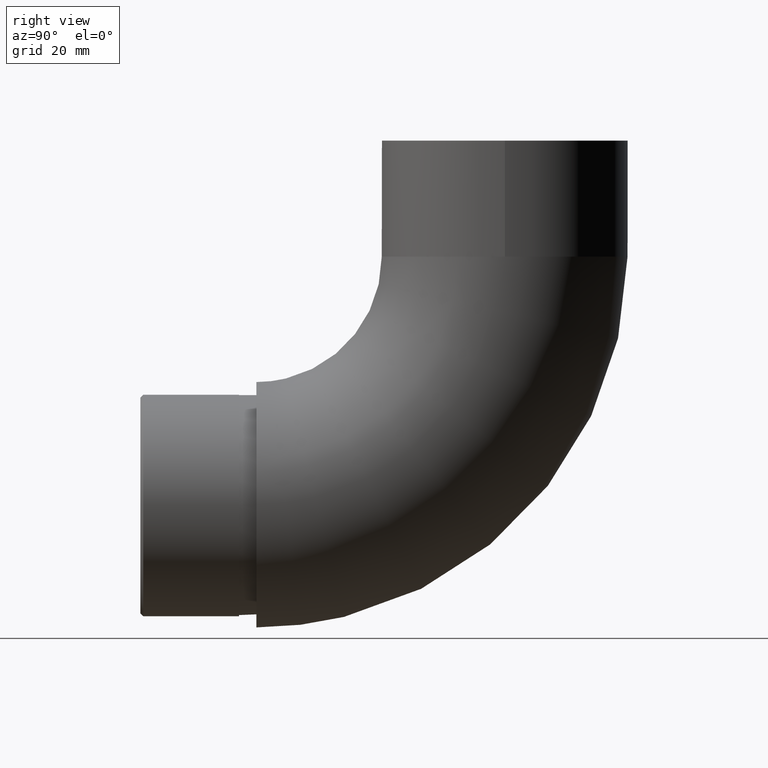
[diagram: clean part render]
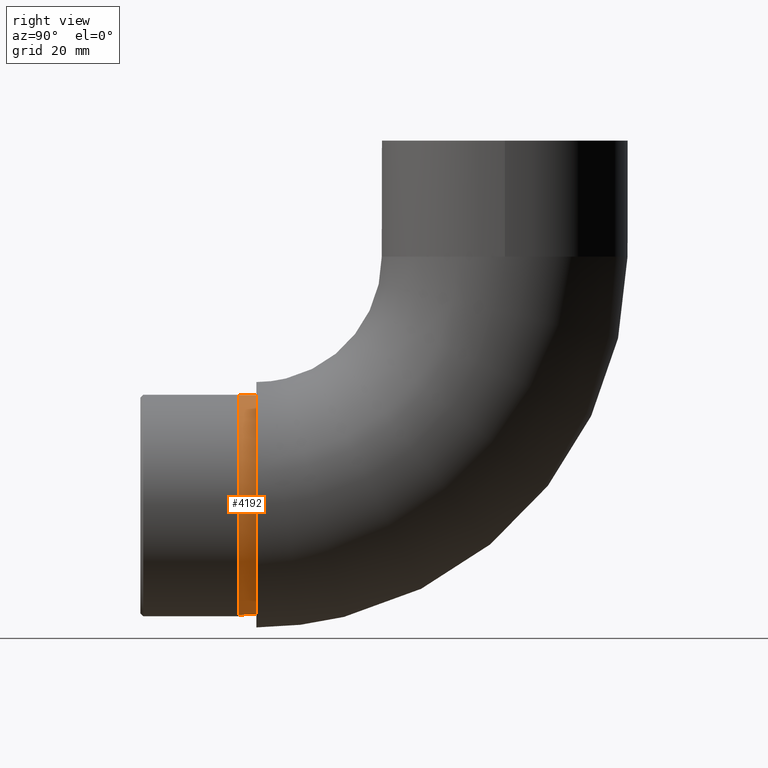
[diagram: same view with one face highlighted and labeled with its STEP entity id]
A machine part, right view. The second image highlights one B-rep face of the part: STEP entity #4192.
In plain terms, the highlighted cylindrical surface (bore or boss wall) has radius 18.95 mm, axis along (-0, 1, -0).
Its self-contained STEP definition (entity closure, byte-faithful):
#103 = DIRECTION ( 'NONE',  ( 0.0000000000000000000, 0.0000000000000000000, 1.000000000000000000 ) ) ;
#125 = EDGE_CURVE ( 'NONE', #11270, #11270, #10577, .T. ) ;
#212 = ORIENTED_EDGE ( 'NONE', *, *, #125, .F. ) ;
#528 = CYLINDRICAL_SURFACE ( 'NONE', #6768, 18.94999999999999900 ) ;
#643 = CARTESIAN_POINT ( 'NONE',  ( 0.0000000000000000000, -3.000000000000000000, 0.0000000000000000000 ) ) ;
#767 = DIRECTION ( 'NONE',  ( 0.0000000000000000000, -1.000000000000000000, 0.0000000000000000000 ) ) ;
#965 = DIRECTION ( 'NONE',  ( -0.0000000000000000000, -1.000000000000000000, -0.0000000000000000000 ) ) ;
#1018 = EDGE_CURVE ( 'NONE', #1549, #1549, #4416, .T. ) ;
#1549 = VERTEX_POINT ( 'NONE', #9834 ) ;
#2637 = DIRECTION ( 'NONE',  ( 0.0000000000000000000, 0.0000000000000000000, -1.000000000000000000 ) ) ;
#3744 = EDGE_LOOP ( 'NONE', ( #212 ) ) ;
#3992 = AXIS2_PLACEMENT_3D ( 'NONE', #5047, #965, #4000 ) ;
#4000 = DIRECTION ( 'NONE',  ( 0.0000000000000000000, 0.0000000000000000000, 1.000000000000000000 ) ) ;
#4192 = ADVANCED_FACE ( 'NONE', ( #4832, #5761 ), #528, .T. ) ;
#4416 = CIRCLE ( 'NONE', #3992, 18.94999999999999900 ) ;
#4832 = FACE_OUTER_BOUND ( 'NONE', #3744, .T. ) ;
#5047 = CARTESIAN_POINT ( 'NONE',  ( 0.0000000000000000000, 0.0000000000000000000, 0.0000000000000000000 ) ) ;
#5761 = FACE_OUTER_BOUND ( 'NONE', #7547, .T. ) ;
#6333 = ORIENTED_EDGE ( 'NONE', *, *, #1018, .T. ) ;
#6768 = AXIS2_PLACEMENT_3D ( 'NONE', #11755, #12743, #103 ) ;
#7547 = EDGE_LOOP ( 'NONE', ( #6333 ) ) ;
#7830 = CARTESIAN_POINT ( 'NONE',  ( 0.0000000000000000000, -3.000000000000000000, -18.94999999999999900 ) ) ;
#9834 = CARTESIAN_POINT ( 'NONE',  ( 0.0000000000000000000, 0.0000000000000000000, 18.94999999999999900 ) ) ;
#10275 = AXIS2_PLACEMENT_3D ( 'NONE', #643, #767, #2637 ) ;
#10577 = CIRCLE ( 'NONE', #10275, 18.94999999999999900 ) ;
#11270 = VERTEX_POINT ( 'NONE', #7830 ) ;
#11755 = CARTESIAN_POINT ( 'NONE',  ( 0.0000000000000000000, -3.000000000000000000, 0.0000000000000000000 ) ) ;
#12743 = DIRECTION ( 'NONE',  ( -0.0000000000000000000, 1.000000000000000000, -0.0000000000000000000 ) ) ;